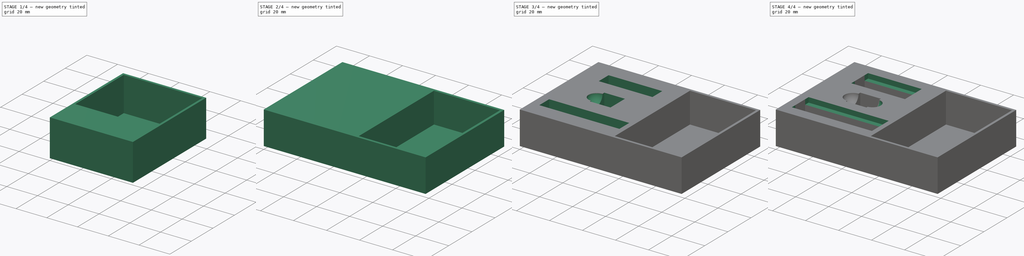
[diagram: build sequence overview — one tinted view per stage of 4, left to right]
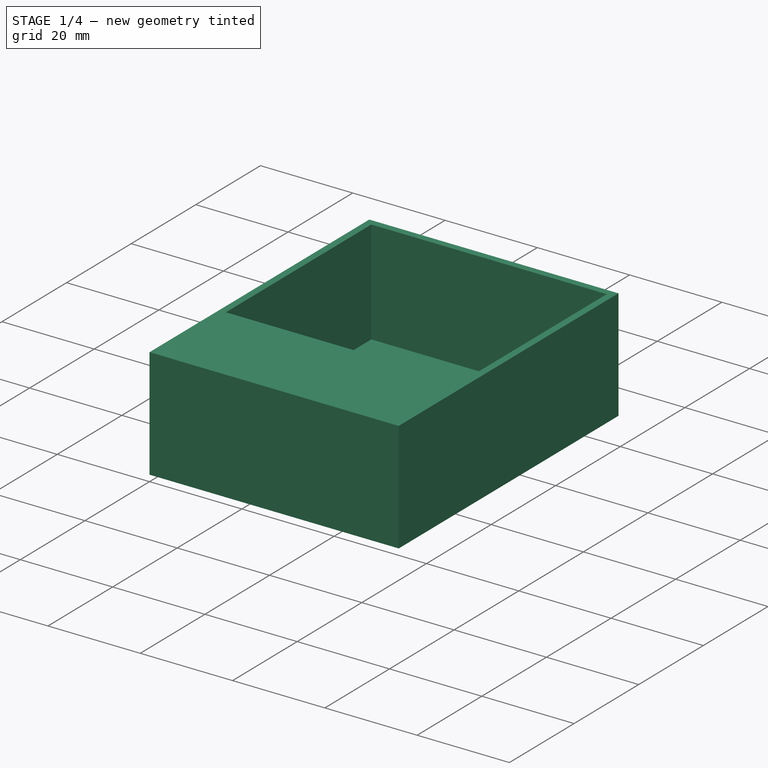
[diagram: stage 1 of 4 — iso view after this stage's code; geometry added in this stage tinted green]
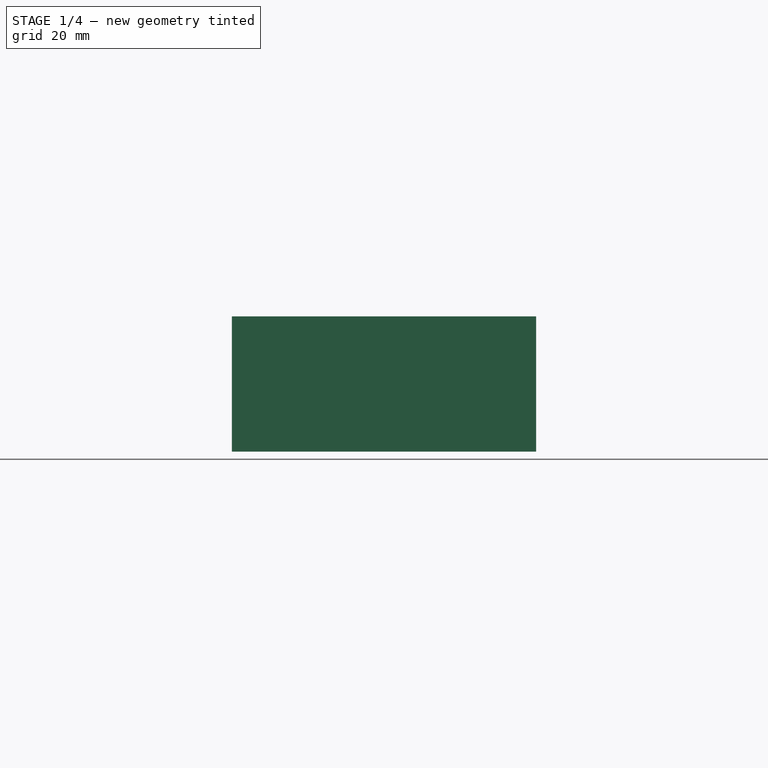
[diagram: stage 1 of 4 — front view after this stage's code; geometry added in this stage tinted green]
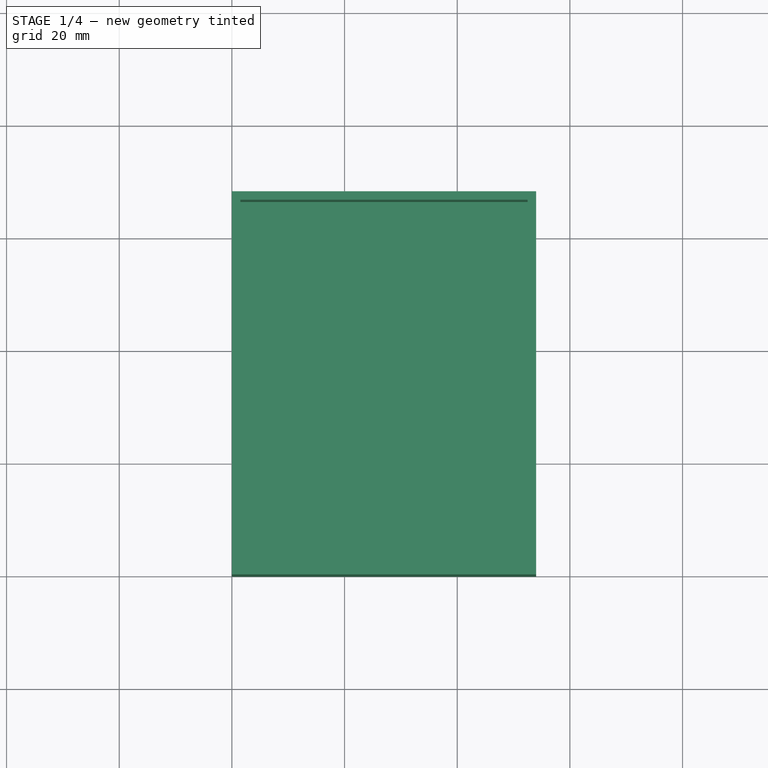
[diagram: stage 1 of 4 — top view after this stage's code; geometry added in this stage tinted green]
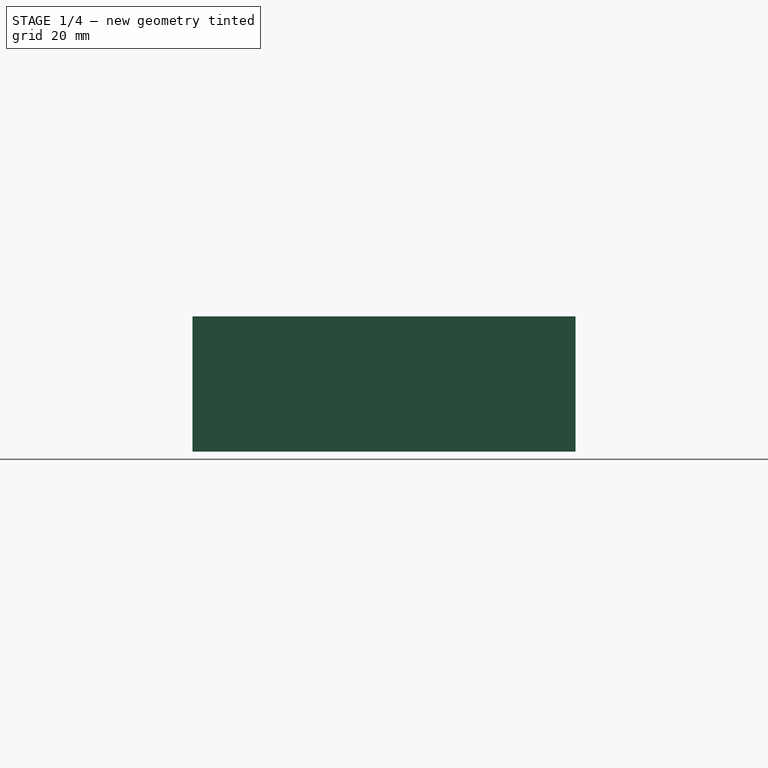
[diagram: stage 1 of 4 — right view after this stage's code; geometry added in this stage tinted green]
FCSTD DOCUMENT  (FreeCAD 0.21R33771 (Git))
Label: insert-ghbnb
License: All rights reserved
LicenseURL: https://en.wikipedia.org/wiki/All_rights_reserved
objects: Sketcher::SketchObject×10, PartDesign::Pocket×6, PartDesign::Pad×2, PartDesign::Body×2, Spreadsheet::Sheet×1, PartDesign::ShapeBinder×1, PartDesign::Groove×1, PartDesign::Point×1, PartDesign::Plane×1, PartDesign::Mirrored×1
note: 34 computed .brp shape members not serialized (recipe doc carries the construction recipe); baked Part::Feature solids carry a one-line shape summary decoded from their .brp

FEATURE [Spreadsheet::Sheet] Spreadsheet  label="constantes"
  cells = A1='largeur; B1(largeur)==70 mm; A2='longueur; B2(longueur)==100 mm; D2='Boites disque mini; A3='épaisseur mur boite; B3(epaisseur_mur_boite)==1.8 mm; A4='epaisseur cartes joueurs; B4(epaisseur_cartes_joueurs)==24 mm; D4='cote longeur boite; E4(largeur_boite_disque_mini)==longueur - largeur_carte - 2 * marge; A5='largeur cartes joueurs; B5(largeur_carte)==44 mm; D5='cote largeur boite; E5(longueur_boite_disque_mini)==longueur_carte; A6='longueur cartes joueurs; B6(longueur_carte)==68 mm; D6='hauteur; E6(hauteur_boite_disque_mini)==epaisseur_cartes_joueurs; A7='hauteur dispo creation; B7(hauteur_disponible)==44 mm; A8='marge; B8(marge)==1 mm; D8='Boite cube et marqueurs; A9='epaisseurs murs; B9(epaisseur_mur)==1.5 mm; D9='longueur; E9(longueur_boite_cubes_marqueurs)==longueur - 2 * marge; A10='epaisseur plancher; B10(epaisseur_plancher)==1.5 mm; D10='largeur; E10(largeur_boite_cubes_marqueurs)==largeur - 2 * marge; D11='hauteur; E11(hauteur_boite_cubes_marqueurs)==hauteur_disponible - hauteur_boite_disque_mini; A12='hauteur mini; B12(hauteur_mini)==17.5 mm; A13='largeur max mini; B13(largeur_max_mini)==16 mm; D13='rangement marqueurs; A14='diametre socle mini; B14(diametre_socle_mini)==11 mm; D14='cote longueur boite; E14(largeur_compartiment_marqueurs)==40 mm; A15='marge mini; B15(marge_mini)==2 mm; A16='dé; B16(cote_de)==12 mm; D16='espace cubes et de; A17='diametre disque; B17(diametre_disque)==44 mm; E17(longueur_rangement_cubes_et_de)==largeur_boite_cubes_marqueurs; A18='mini cube; B18(cote_cube)==8 mm; E18(largeur_rangement_cubes_et_de)==longueur - largeur_compartiment_marqueurs - epaisseur_mur; D20='rangement cubes; E20(distance_bords_long_centre_rangement_cubes)==(longueur_rangement_cubes_et_de / 2 - cote_de / 2) / 2; D21='tolerance cubes; E21(tolerance_cube)==0.5 mm; D22='tolerance de; E22(tolerance_de)==0.5 mm; D23='prise cube; E23(espace_prise_cube)==3 mm; D24='profondeur prise cube; E24(profondeur_prise_cube)==3 mm; D25='rayon prise de; E25(rayon_prise_de)==5 mm
FEATURE [Sketcher::SketchObject] Sketch  label="contour_boite_disques_minis"
  FullyConstrained = true
  MapMode = 5
  Support = -> [XY_Plane]
  expr: Constraints[10] = <<constantes>>.longueur_boite_disque_mini
  expr: Constraints[9] = <<constantes>>.largeur_boite_disque_mini
  sketch-geometry (4):
    g0: LineSegment StartX=0 StartY=0 StartZ=0 EndX=54 EndY=0 EndZ=0
    g1: LineSegment StartX=54 StartY=0 StartZ=0 EndX=54 EndY=68 EndZ=0
    g2: LineSegment StartX=54 StartY=68 StartZ=0 EndX=0 EndY=68 EndZ=0
    g3: LineSegment StartX=0 StartY=68 StartZ=0 EndX=0 EndY=0 EndZ=0
  constraints (11):
    c: Coincident(g0,g1)
    c: Coincident(g1,g2)
    c: Coincident(g2,g3)
    c: Coincident(g3,g0)
    c: Horizontal(g0)
    c: Horizontal(g2)
    c: Vertical(g1)
    c: Vertical(g3)
    c: Coincident(g0,g-1)
    c: DistanceX(g0,g0) = 54
    c: DistanceY(g1,g1) = 68
FEATURE [PartDesign::Pad] Pad  label="enveloppe_boite_disques_minis"
  Direction = (0,0,1)
  Length = 24
  Length2 = 10
  Profile = -> Sketch
  ReferenceAxis = -> Sketch [N_Axis]
  Type = 0
  expr: Length = <<constantes>>.hauteur_boite_disque_mini
FEATURE [Sketcher::SketchObject] Sketch001  label="coutour_trou_disques"
  ExternalGeometry = -> [Pad]
  FullyConstrained = true
  MapMode = 5
  Placement = pos=(0,0,24) rot=(0,0,1;0rad)
  Support = -> [Pad]
  expr: Constraints[10] = <<constantes>>.epaisseur_mur
  expr: Constraints[11] = <<constantes>>.diametre_disque + <<constantes>>.marge
  expr: Constraints[8] = <<constantes>>.epaisseur_mur
  expr: Constraints[9] = <<constantes>>.epaisseur_mur
  sketch-geometry (4):
    g0: LineSegment StartX=1.5 StartY=66.5 StartZ=0 EndX=52.5 EndY=66.5 EndZ=0
    g1: LineSegment StartX=52.5 StartY=66.5 StartZ=0 EndX=52.5 EndY=21.5 EndZ=0
    g2: LineSegment StartX=52.5 StartY=21.5 StartZ=0 EndX=1.5 EndY=21.5 EndZ=0
    g3: LineSegment StartX=1.5 StartY=21.5 StartZ=0 EndX=1.5 EndY=66.5 EndZ=0
  constraints (12):
    c: Coincident(g0,g1)
    c: Coincident(g1,g2)
    c: Coincident(g2,g3)
    c: Coincident(g3,g0)
    c: Horizontal(g0)
    c: Horizontal(g2)
    c: Vertical(g1)
    c: Vertical(g3)
    c: DistanceY(g0,g-4) = 1.5
    c: DistanceX(g0,g-3) = 1.5
    c: DistanceX(g-4,g2) = 1.5
    c: DistanceY(g1,g1) = 45
FEATURE [PartDesign::Pocket] Pocket  label="trou_disques"
  BaseFeature = -> Pad
  Direction = (0,0,-1)
  Length = 22.5
  Length2 = 5
  Profile = -> Sketch001
  ReferenceAxis = -> Sketch001 [N_Axis]
  Type = 0
  expr: Length = <<constantes>>.epaisseur_cartes_joueurs - <<constantes>>.epaisseur_plancher
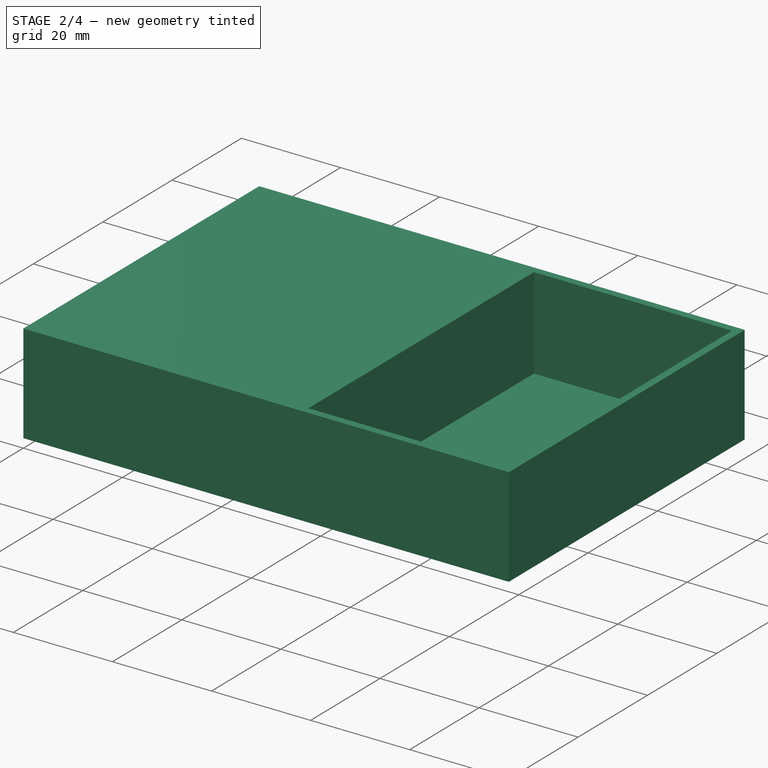
[diagram: stage 2 of 4 — iso view after this stage's code; geometry added in this stage tinted green]
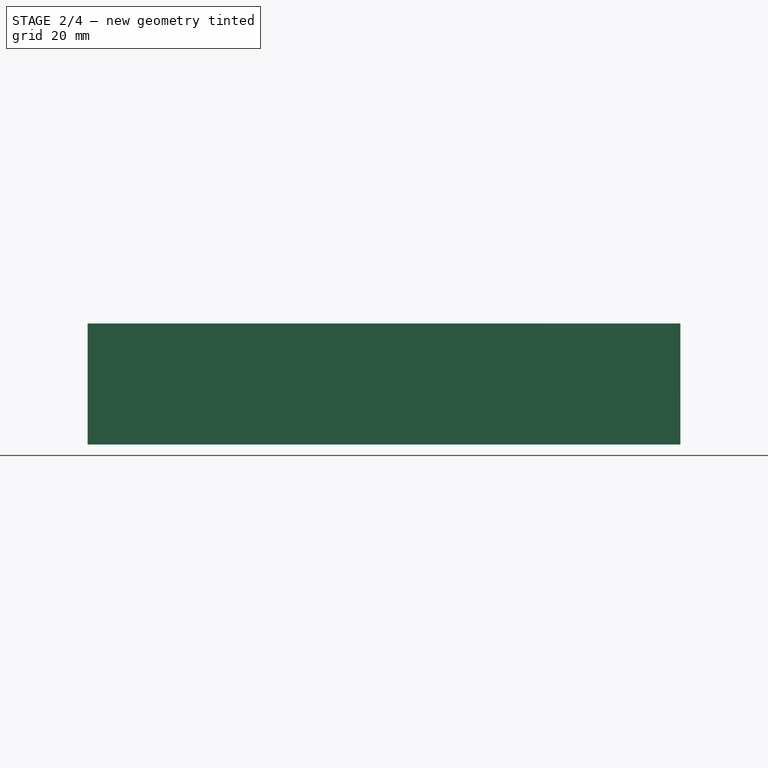
[diagram: stage 2 of 4 — front view after this stage's code; geometry added in this stage tinted green]
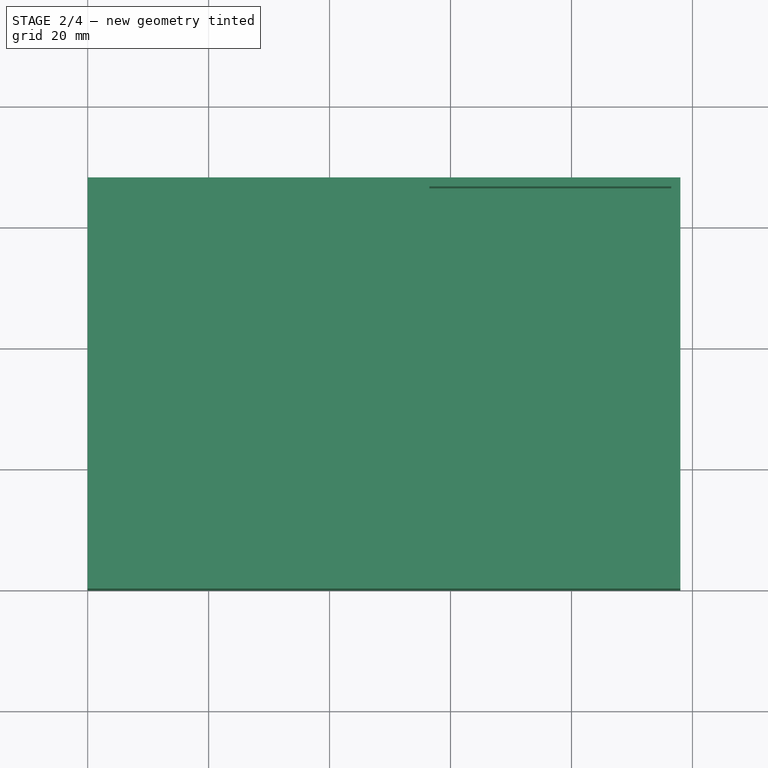
[diagram: stage 2 of 4 — top view after this stage's code; geometry added in this stage tinted green]
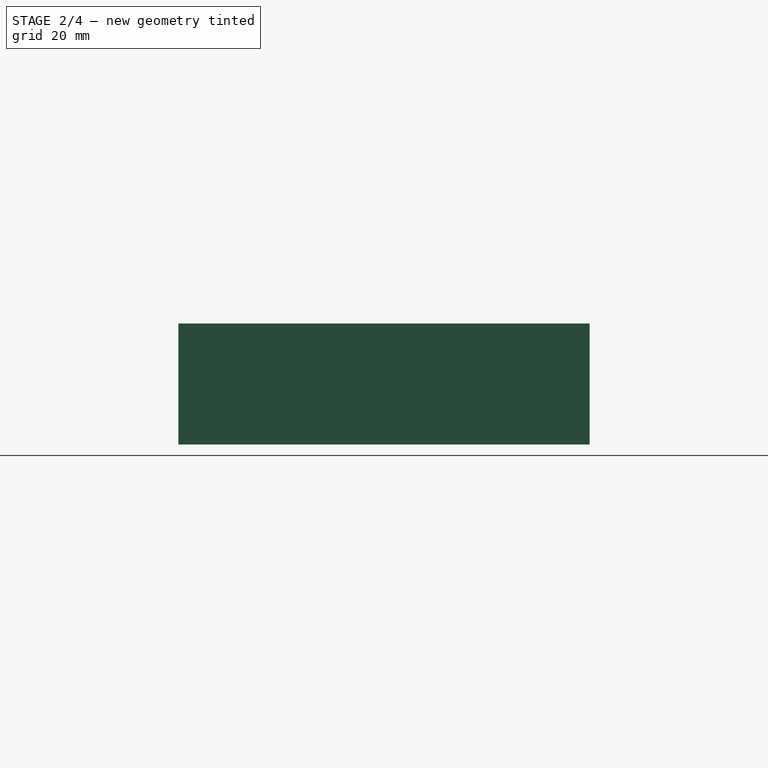
[diagram: stage 2 of 4 — right view after this stage's code; geometry added in this stage tinted green]
FEATURE [Sketcher::SketchObject] Sketch002  label="contour_trou_minis"
  ExternalGeometry = -> [Pocket]
  FullyConstrained = true
  MapMode = 5
  Placement = pos=(0,0,24) rot=(0,0,1;0rad)
  Support = -> [Pocket]
  expr: Constraints[10] = <<constantes>>.epaisseur_mur
  expr: Constraints[11] = <<constantes>>.epaisseur_mur
  expr: Constraints[8] = <<constantes>>.hauteur_mini + <<constantes>>.marge_mini
  sketch-geometry (4):
    g0: LineSegment StartX=1.5 StartY=21 StartZ=0 EndX=52.5 EndY=21 EndZ=0
    g1: LineSegment StartX=52.5 StartY=21 StartZ=0 EndX=52.5 EndY=1.5 EndZ=0
    g2: LineSegment StartX=52.5 StartY=1.5 StartZ=0 EndX=1.5 EndY=1.5 EndZ=0
    g3: LineSegment StartX=1.5 StartY=1.5 StartZ=0 EndX=1.5 EndY=21 EndZ=0
  constraints (13):
    c: Coincident(g0,g1)
    c: Coincident(g1,g2)
    c: Coincident(g2,g3)
    c: Coincident(g3,g0)
    c: Horizontal(g0)
    c: Horizontal(g2)
    c: Vertical(g1)
    c: Vertical(g3)
    c: DistanceY(g1,g1) = 19.5
    c: Equal(g-3,g0)
    c: DistanceX(g-1,g2) = 1.5
    c: DistanceY(g-1,g2) = 1.5
    c: DistanceY(g0,g-3) = 0.5
FEATURE [PartDesign::Pocket] Pocket001  label="trou_minis"
  BaseFeature = -> Pocket
  Direction = (0,0,-1)
  Length = 18.5
  Length2 = 5
  Profile = -> Sketch002
  ReferenceAxis = -> Sketch002 [N_Axis]
  Type = 0
  expr: Length = <<constantes>>.hauteur_mini + <<constantes>>.marge
FEATURE [PartDesign::Body] Body  label="boite_disques_minis"
  Group = -> [Sketch,Pad,Sketch001,Pocket,Sketch002,Pocket001]
  Origin = -> Origin
  Tip = -> Pocket001
FEATURE [PartDesign::ShapeBinder] ShapeBinder
  Support = -> [Pocket001]
  TraceSupport = false
FEATURE [Sketcher::SketchObject] Sketch003  label="contour_boite_cubes_marqueurs"
  FullyConstrained = true
  MapMode = 5
  Placement = pos=(0,0,24) rot=(0,0,1;0rad)
  Support = -> [ShapeBinder]
  expr: Constraints[10] = <<constantes>>.longueur_boite_cubes_marqueurs
  expr: Constraints[9] = <<constantes>>.largeur_boite_cubes_marqueurs
  sketch-geometry (4):
    g0: LineSegment StartX=0 StartY=0 StartZ=0 EndX=98 EndY=0 EndZ=0
    g1: LineSegment StartX=98 StartY=0 StartZ=0 EndX=98 EndY=68 EndZ=0
    g2: LineSegment StartX=98 StartY=68 StartZ=0 EndX=0 EndY=68 EndZ=0
    g3: LineSegment StartX=0 StartY=68 StartZ=0 EndX=0 EndY=0 EndZ=0
  constraints (11):
    c: Coincident(g0,g1)
    c: Coincident(g1,g2)
    c: Coincident(g2,g3)
    c: Coincident(g3,g0)
    c: Horizontal(g0)
    c: Horizontal(g2)
    c: Vertical(g1)
    c: Vertical(g3)
    c: Coincident(g0,g-1)
    c: DistanceY(g1,g1) = 68
    c: DistanceX(g2,g2) = 98
FEATURE [PartDesign::Pad] Pad001  label="enveloppe_boite_cubes_marqueurs"
  Direction = (0,0,1)
  Length = 20
  Length2 = 10
  Profile = -> Sketch003
  ReferenceAxis = -> Sketch003 [N_Axis]
  Type = 0
  expr: Length = <<constantes>>.hauteur_boite_cubes_marqueurs
FEATURE [Sketcher::SketchObject] Sketch004  label="contour_rangement_marqueurs"
  ExternalGeometry = -> [Pad001]
  FullyConstrained = true
  MapMode = 5
  Placement = pos=(0,0,44) rot=(0,0,1;0rad)
  Support = -> [Pad001]
  expr: Constraints[10] = <<constantes>>.epaisseur_mur
  expr: Constraints[11] = <<constantes>>.largeur_compartiment_marqueurs
  expr: Constraints[8] = <<constantes>>.epaisseur_mur
  expr: Constraints[9] = <<constantes>>.epaisseur_mur
  sketch-geometry (4):
    g0: LineSegment StartX=56.5 StartY=66.5 StartZ=0 EndX=96.5 EndY=66.5 EndZ=0
    g1: LineSegment StartX=96.5 StartY=66.5 StartZ=0 EndX=96.5 EndY=1.5 EndZ=0
    g2: LineSegment StartX=96.5 StartY=1.5 StartZ=0 EndX=56.5 EndY=1.5 EndZ=0
    g3: LineSegment StartX=56.5 StartY=1.5 StartZ=0 EndX=56.5 EndY=66.5 EndZ=0
  constraints (12):
    c: Coincident(g0,g1)
    c: Coincident(g1,g2)
    c: Coincident(g2,g3)
    c: Coincident(g3,g0)
    c: Horizontal(g0)
    c: Horizontal(g2)
    c: Vertical(g1)
    c: Vertical(g3)
    c: DistanceY(g-4,g1) = 1.5
    c: DistanceY(g0,g-3) = 1.5
    c: DistanceX(g0,g-3) = 1.5
    c: DistanceX(g2,g2) = 40
FEATURE [PartDesign::Pocket] Pocket002  label="rangement_marqueurs"
  BaseFeature = -> Pad001
  Direction = (0,0,-1)
  Length = 18.5
  Length2 = 5
  Profile = -> Sketch004
  ReferenceAxis = -> Sketch004 [N_Axis]
  Type = 0
  expr: Length = <<constantes>>.hauteur_boite_cubes_marqueurs - <<constantes>>.epaisseur_plancher
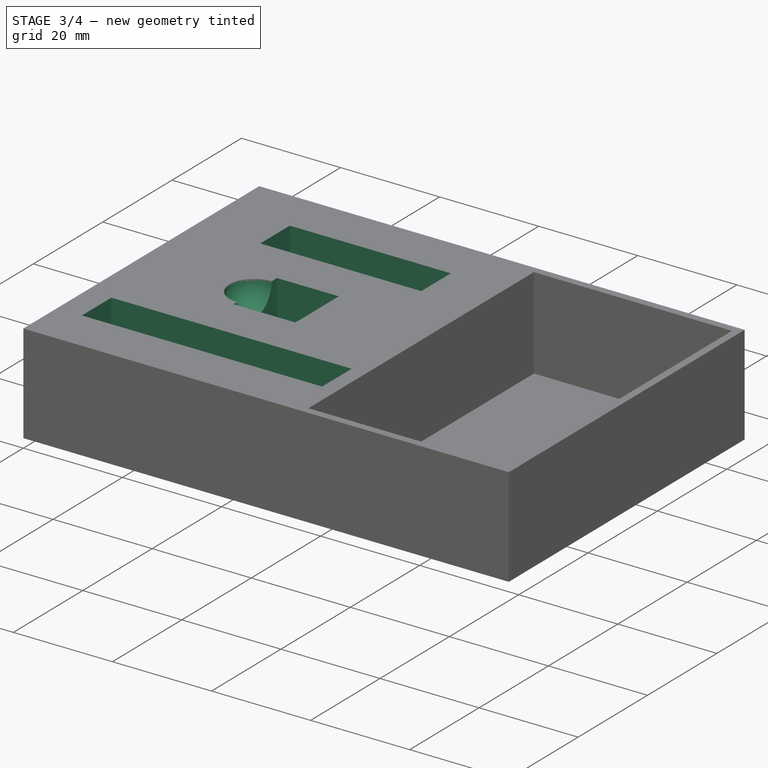
[diagram: stage 3 of 4 — iso view after this stage's code; geometry added in this stage tinted green]
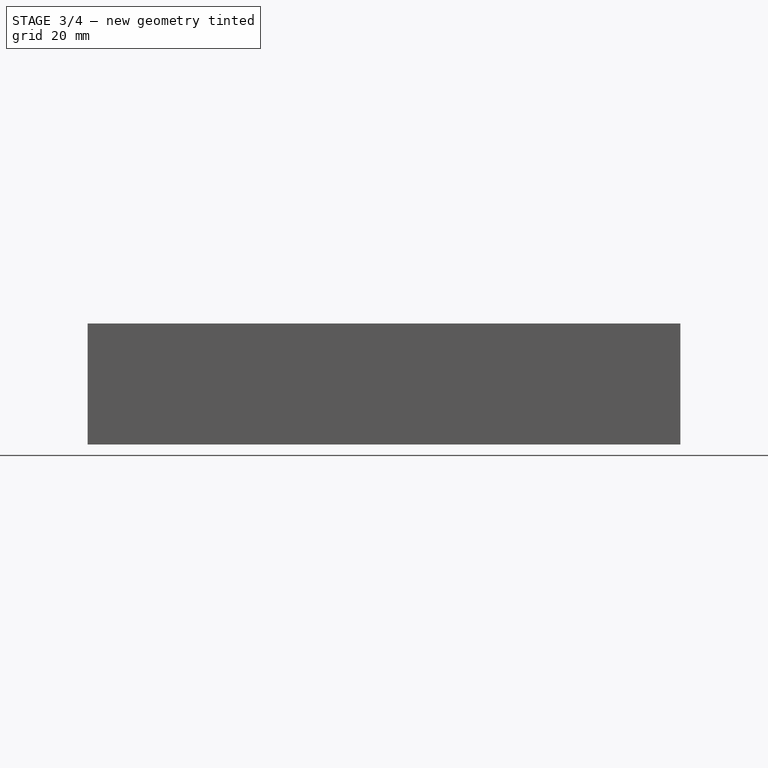
[diagram: stage 3 of 4 — front view after this stage's code; geometry added in this stage tinted green]
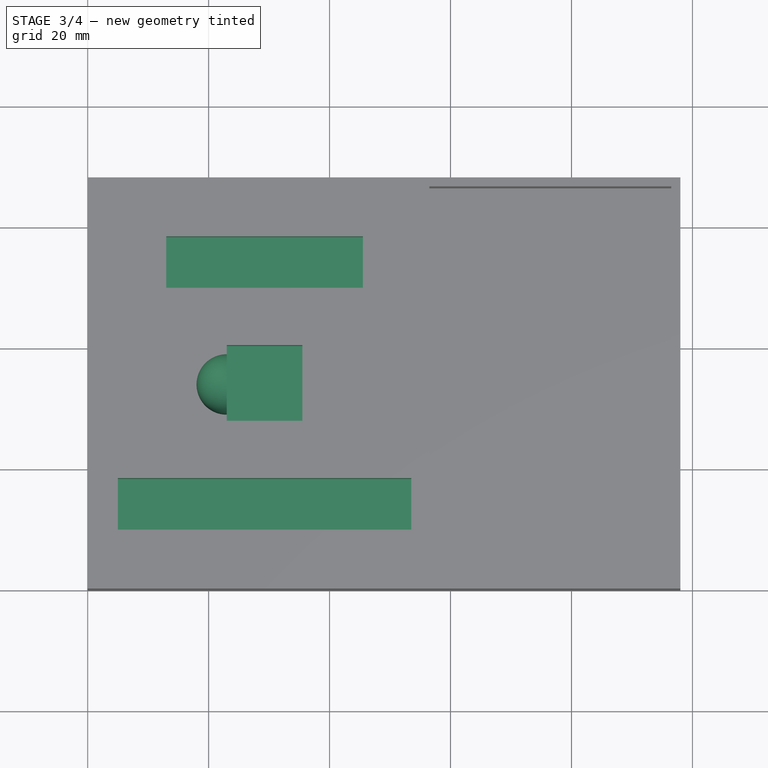
[diagram: stage 3 of 4 — top view after this stage's code; geometry added in this stage tinted green]
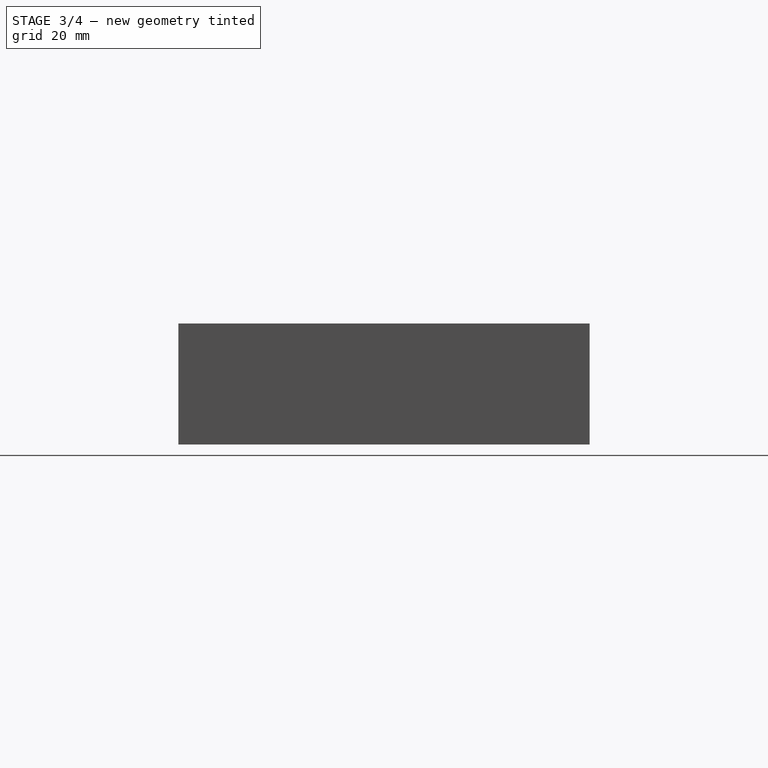
[diagram: stage 3 of 4 — right view after this stage's code; geometry added in this stage tinted green]
FEATURE [Sketcher::SketchObject] Sketch005  label="contour_rangement_de"
  ExternalGeometry = -> [Pocket002]
  FullyConstrained = true
  MapMode = 5
  Placement = pos=(0,0,44) rot=(0,0,1;0rad)
  Support = -> [Pocket002]
  expr: Constraints[0] = <<constantes>>.longueur_rangement_cubes_et_de / 2
  expr: Constraints[13] = <<constantes>>.cote_de + <<constantes>>.tolerance_de
  expr: Constraints[1] = <<constantes>>.largeur_rangement_cubes_et_de / 2
  sketch-geometry (6):
    g0: GeomPoint X=29.25 Y=34 Z=0
    g1: LineSegment StartX=35.5 StartY=27.75 StartZ=0 EndX=35.5 EndY=40.25 EndZ=0
    g2: LineSegment StartX=35.5 StartY=40.25 StartZ=0 EndX=23 EndY=40.25 EndZ=0
    g3: LineSegment StartX=23 StartY=40.25 StartZ=0 EndX=23 EndY=27.75 EndZ=0
    g4: LineSegment StartX=23 StartY=27.75 StartZ=0 EndX=35.5 EndY=27.75 EndZ=0
    g5: GeomPoint X=29.25 Y=34 Z=0
  constraints (14):
    c: DistanceY(g0,g-3) = 34
    c: DistanceX(g-3,g0) = 29.25
    c: Coincident(g1,g2)
    c: Coincident(g2,g3)
    c: Coincident(g3,g4)
    c: Coincident(g4,g1)
    c: Horizontal(g2)
    c: Horizontal(g4)
    c: Vertical(g1)
    c: Vertical(g3)
    c: Symmetric(g2,g1,g5)
    c: Coincident(g5,g0)
    c: Equal(g2,g1)
    c: DistanceX(g2,g2) = 12.5
FEATURE [PartDesign::Pocket] Pocket003  label="rangement_de"
  BaseFeature = -> Pocket002
  Direction = (0,0,-1)
  Length = 8
  Length2 = 5
  Profile = -> Sketch005
  ReferenceAxis = -> Sketch005 [N_Axis]
  Type = 0
  expr: Length = <<constantes>>.cote_cube
FEATURE [Sketcher::SketchObject] Sketch006  label="contour_rangement_cubes"
  ExternalGeometry = -> [Pocket003]
  FullyConstrained = true
  MapMode = 5
  Placement = pos=(0,0,44) rot=(0,0,1;0rad)
  Support = -> [Pocket003]
  expr: Constraints[0] = <<constantes>>.largeur_rangement_cubes_et_de / 2
  expr: Constraints[1] = <<constantes>>.distance_bords_long_centre_rangement_cubes
  expr: Constraints[24] = <<constantes>>.cote_cube + <<constantes>>.tolerance_de
  expr: Constraints[25] = <<constantes>>.cote_cube + <<constantes>>.tolerance_cube
  expr: Constraints[26] = 4 * <<constantes>>.cote_cube + <<constantes>>.tolerance_cube
  expr: Constraints[27] = 6 * <<constantes>>.cote_cube + <<constantes>>.tolerance_cube
  expr: Constraints[2] = <<constantes>>.largeur_rangement_cubes_et_de / 2
  expr: Constraints[3] = <<constantes>>.distance_bords_long_centre_rangement_cubes
  sketch-geometry (12):
    g0: GeomPoint X=29.25 Y=14 Z=0
    g1: GeomPoint X=29.25 Y=54 Z=0
    g2: LineSegment StartX=13 StartY=49.75 StartZ=0 EndX=13 EndY=58.25 EndZ=0
    g3: LineSegment StartX=13 StartY=58.25 StartZ=0 EndX=45.5 EndY=58.25 EndZ=0
    g4: LineSegment StartX=45.5 StartY=58.25 StartZ=0 EndX=45.5 EndY=49.75 EndZ=0
    g5: LineSegment StartX=45.5 StartY=49.75 StartZ=0 EndX=13 EndY=49.75 EndZ=0
    g6: GeomPoint X=29.25 Y=54 Z=0
    g7: LineSegment StartX=5 StartY=9.75 StartZ=0 EndX=5 EndY=18.25 EndZ=0
    g8: LineSegment StartX=5 StartY=18.25 StartZ=0 EndX=53.5 EndY=18.25 EndZ=0
    g9: LineSegment StartX=53.5 StartY=18.25 StartZ=0 EndX=53.5 EndY=9.75 EndZ=0
    g10: LineSegment StartX=53.5 StartY=9.75 StartZ=0 EndX=5 EndY=9.75 EndZ=0
    g11: GeomPoint X=29.25 Y=14 Z=0
  constraints (28):
    c: DistanceX(g-3,g0) = 29.25
    c: DistanceY(g-3,g0) = 14
    c: DistanceX(g-4,g1) = 29.25
    c: DistanceY(g1,g-4) = 14
    c: Coincident(g2,g3)
    c: Coincident(g3,g4)
    c: Coincident(g4,g5)
    c: Coincident(g5,g2)
    c: Horizontal(g3)
    c: Horizontal(g5)
    c: Vertical(g2)
    c: Vertical(g4)
    c: Symmetric(g3,g2,g6)
    c: Coincident(g6,g1)
    c: Coincident(g7,g8)
    c: Coincident(g8,g9)
    c: Coincident(g9,g10)
    c: Coincident(g10,g7)
    c: Horizontal(g8)
    c: Horizontal(g10)
    c: Vertical(g7)
    c: Vertical(g9)
    c: Symmetric(g8,g7,g11)
    c: Coincident(g11,g0)
    c: DistanceY(g7,g7) = 8.5
    c: DistanceY(g2,g2) = 8.5
    c: DistanceX(g3,g3) = 32.5
    c: DistanceX(g8,g8) = 48.5
FEATURE [PartDesign::Pocket] Pocket004  label="rangement_cubes"
  BaseFeature = -> Pocket003
  Direction = (0,0,-1)
  Length = 8
  Length2 = 5
  Profile = -> Sketch006
  ReferenceAxis = -> Sketch006 [N_Axis]
  Type = 0
  expr: Length = <<constantes>>.cote_cube
FEATURE [Sketcher::SketchObject] Sketch007  label="contour_prise_de_gauche"
  ExternalGeometry = -> [Pocket004]
  FullyConstrained = true
  MapMode = 5
  Placement = pos=(0,0,44) rot=(0,0,1;0rad)
  Support = -> [Pocket004]
  expr: Constraints[2] = <<constantes>>.cote_de / 2
  expr: Constraints[3] = <<constantes>>.rayon_prise_de
  sketch-geometry (2):
    g0: ArcOfCircle CenterX=23 CenterY=33.75 CenterZ=0 NormalX=0 NormalY=0 NormalZ=1 AngleXU=0 Radius=5 StartAngle=1.5708 EndAngle=4.71239
    g1: LineSegment StartX=23 StartY=38.75 StartZ=0 EndX=23 EndY=28.75 EndZ=0
  constraints (7):
    c: PointOnObject(g0,g-3)
    c: PointOnObject(g0,g-3)
    c: DistanceY(g-3,g0) = 6
    c: DistanceY(g0,g0) = 5
    c: PointOnObject(g0,g-3)
    c: Coincident(g1,g0)
    c: Coincident(g1,g0)
FEATURE [PartDesign::Groove] Groove  label="prise_de_gauche"
  Angle = 360
  Axis = (0,-1,0)
  Base = (23,40.25,44)
  BaseFeature = -> Pocket004
  Profile = -> Sketch007
  ReferenceAxis = -> Pocket004 [Edge20]
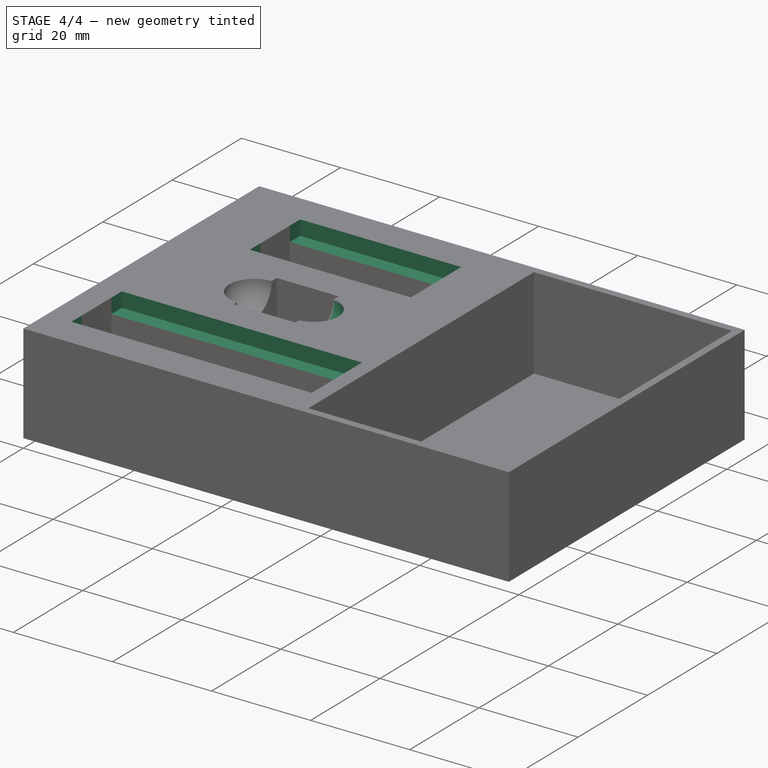
[diagram: stage 4 of 4 — iso view after this stage's code; geometry added in this stage tinted green]
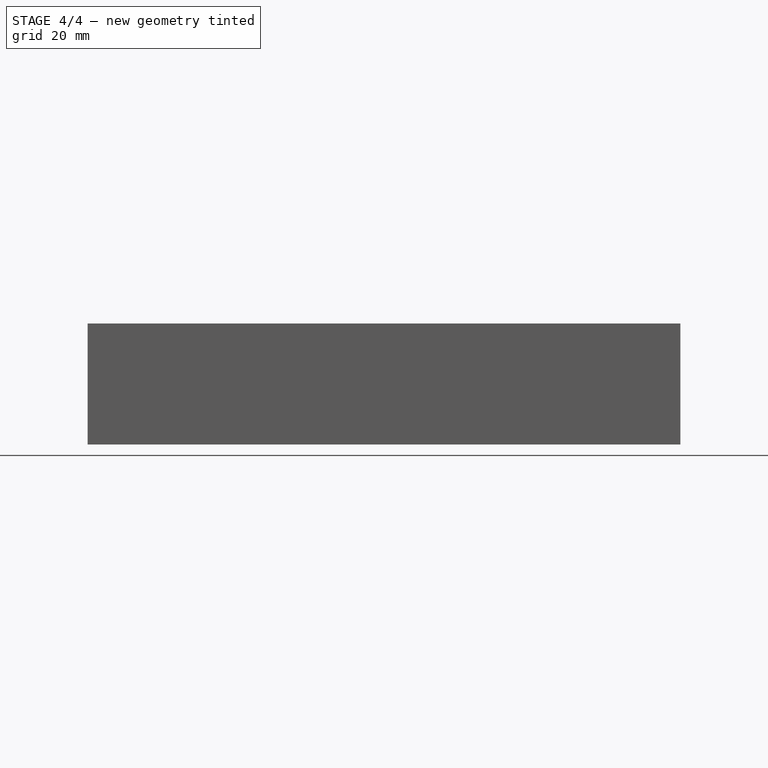
[diagram: stage 4 of 4 — front view after this stage's code; geometry added in this stage tinted green]
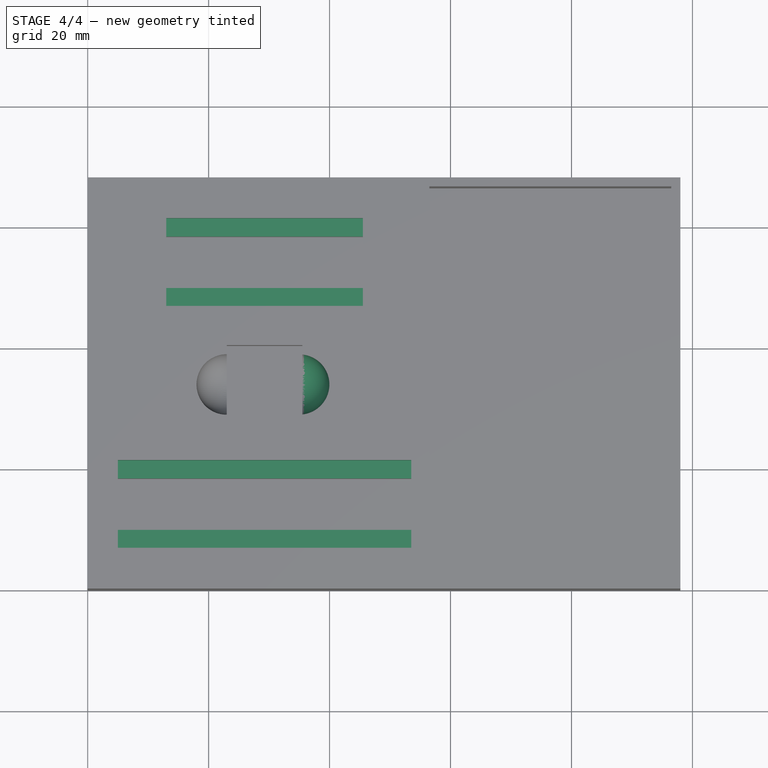
[diagram: stage 4 of 4 — top view after this stage's code; geometry added in this stage tinted green]
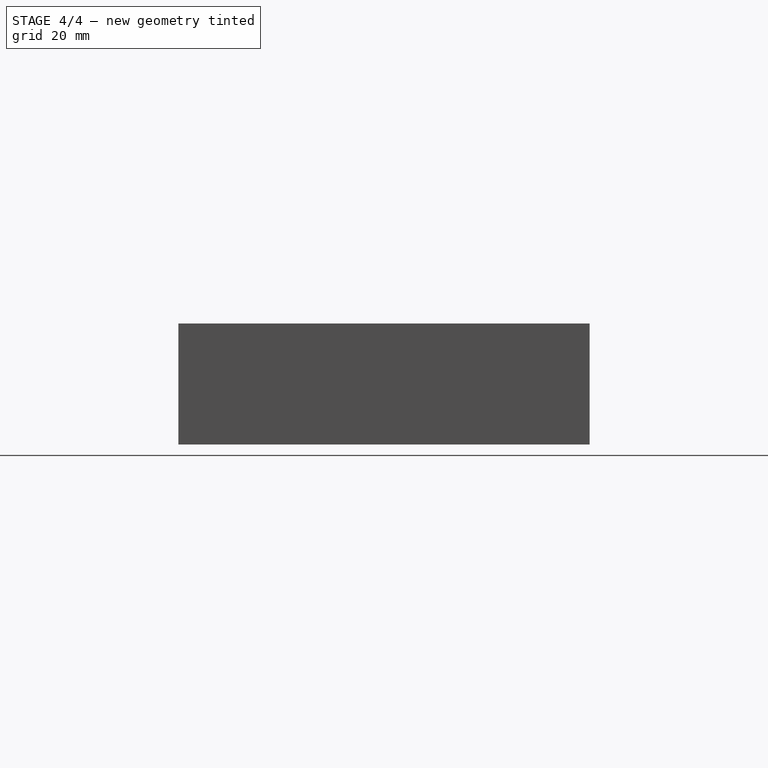
[diagram: stage 4 of 4 — right view after this stage's code; geometry added in this stage tinted green]
FEATURE [Sketcher::SketchObject] Sketch008
  ExternalGeometry = -> [Groove]
  FullyConstrained = false
  MapMode = 5
  Placement = pos=(0,0,44) rot=(0,0,1;0rad)
  Support = -> [Groove]
  expr: Constraints[1] = <<constantes>>.cote_de / 2
  sketch-geometry (1):
    g0: LineSegment StartX=29 StartY=41.6688 StartZ=0 EndX=29 EndY=24.8464 EndZ=0
  constraints (2):
    c: Vertical(g0)
    c: DistanceX(g-3,g0) = 6
FEATURE [PartDesign::Point] DatumPoint
  AttacherType = Attacher::AttachEnginePoint
  MapMode = 37
  Placement = pos=(29.25,34,36) rot=(0,0,1;0rad)
FEATURE [PartDesign::Plane] DatumPlane
  Length = 70.9493
  MapMode = 13
  Placement = pos=(29.0833,33.5051,41.3333) rot=(0.571244,0.571244,0.589374;2.07645rad)
  ResizeMode = 0
  Support = -> [DatumPoint,Sketch008]
  Width = 78.6177
FEATURE [PartDesign::Mirrored] Mirrored  label="prise_de"
  BaseFeature = -> Groove
  MirrorPlane = -> DatumPlane
  Originals = -> [Groove]
FEATURE [Sketcher::SketchObject] Sketch009  label="contour_espace_prise_cube"
  ExternalGeometry = -> [Mirrored]
  FullyConstrained = true
  MapMode = 5
  Placement = pos=(0,0,44) rot=(0,0,1;0rad)
  Support = -> [Mirrored]
  expr: Constraints[18] = <<constantes>>.espace_prise_cube
  expr: Constraints[19] = <<constantes>>.espace_prise_cube
  expr: Constraints[22] = <<constantes>>.espace_prise_cube
  expr: Constraints[23] = <<constantes>>.espace_prise_cube
  sketch-geometry (8):
    g0: LineSegment StartX=13 StartY=61.25 StartZ=0 EndX=45.5 EndY=61.25 EndZ=0
    g1: LineSegment StartX=45.5 StartY=61.25 StartZ=0 EndX=45.5 EndY=46.75 EndZ=0
    g2: LineSegment StartX=45.5 StartY=46.75 StartZ=0 EndX=13 EndY=46.75 EndZ=0
    g3: LineSegment StartX=13 StartY=46.75 StartZ=0 EndX=13 EndY=61.25 EndZ=0
    g4: LineSegment StartX=5 StartY=21.25 StartZ=0 EndX=53.5 EndY=21.25 EndZ=0
    g5: LineSegment StartX=53.5 StartY=21.25 StartZ=0 EndX=53.5 EndY=6.75 EndZ=0
    g6: LineSegment StartX=53.5 StartY=6.75 StartZ=0 EndX=5 EndY=6.75 EndZ=0
    g7: LineSegment StartX=5 StartY=6.75 StartZ=0 EndX=5 EndY=21.25 EndZ=0
  constraints (24):
    c: Coincident(g0,g1)
    c: Coincident(g1,g2)
    c: Coincident(g2,g3)
    c: Coincident(g3,g0)
    c: Horizontal(g0)
    c: Horizontal(g2)
    c: Vertical(g1)
    c: Vertical(g3)
    c: Coincident(g4,g5)
    c: Coincident(g5,g6)
    c: Coincident(g6,g7)
    c: Coincident(g7,g4)
    c: Horizontal(g4)
    c: Horizontal(g6)
    c: Vertical(g5)
    c: Vertical(g7)
    c: Equal(g4,g-3)
    c: DistanceX(g4,g-3) = 0
    c: DistanceY(g-3,g4) = 3
    c: DistanceY(g6,g-4) = 3
    c: Equal(g0,g-6)
    c: DistanceX(g-5,g2) = 0
    c: DistanceY(g-6,g0) = 3
    c: DistanceY(g2,g-5) = 3
FEATURE [PartDesign::Pocket] Pocket005
  BaseFeature = -> Mirrored
  Direction = (0,0,-1)
  Length = 3
  Length2 = 5
  Profile = -> Sketch009
  ReferenceAxis = -> Sketch009 [N_Axis]
  Type = 0
  expr: Length = <<constantes>>.profondeur_prise_cube
FEATURE [PartDesign::Body] Body001  label="boites_cubes_marqueurs"
  Group = -> [ShapeBinder,Sketch003,Pad001,Sketch004,Pocket002,Sketch005,Pocket003,Sketch006,Pocket004,Sketch007,Groove,Sketch008,DatumPoint,DatumPlane,Mirrored,Sketch009,Pocket005]
  Origin = -> Origin001
  Tip = -> Pocket005
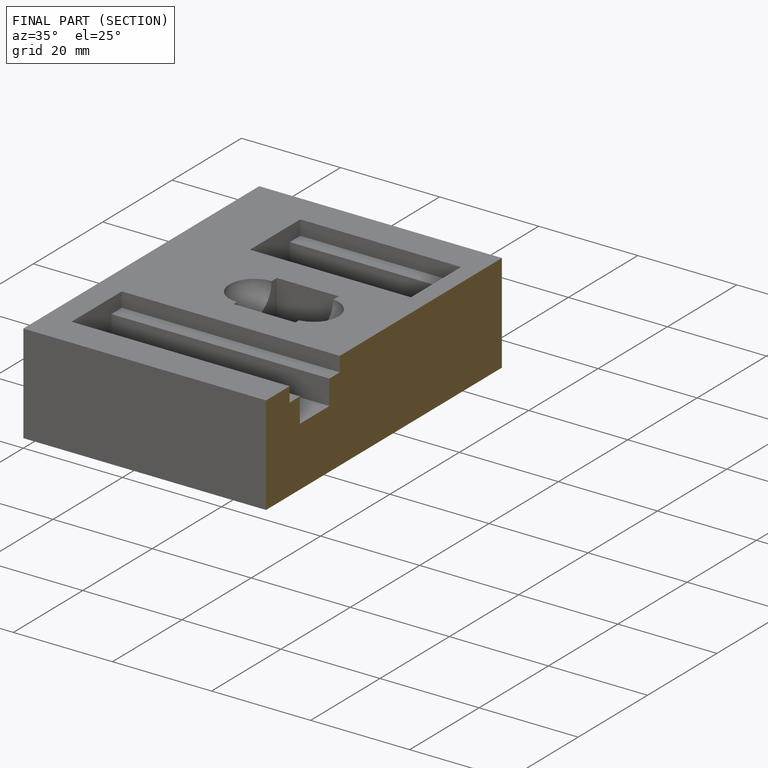
[diagram: finished part — half-section view (interior)]
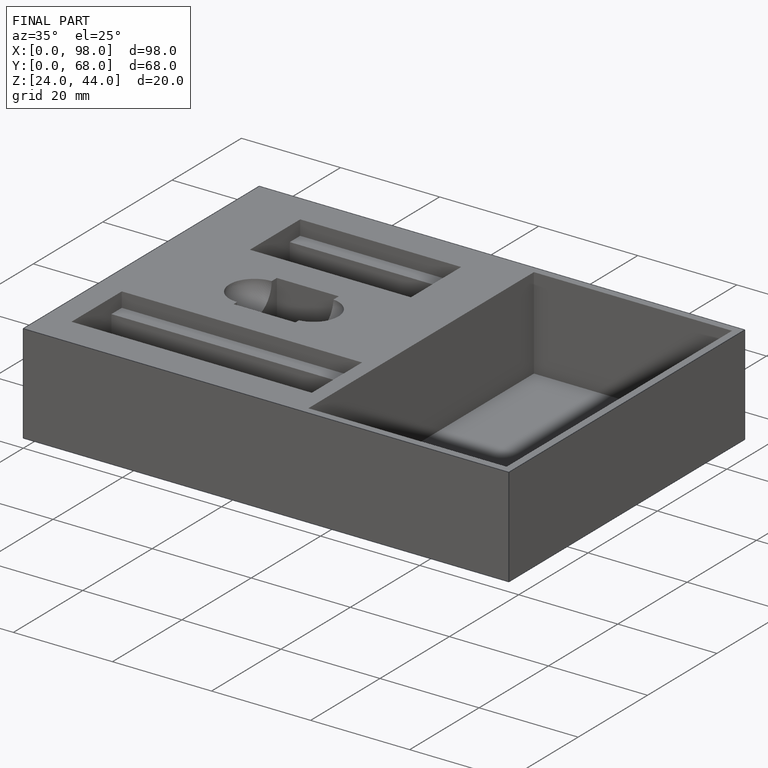
[diagram: finished part — iso view with bounding-box wireframe]
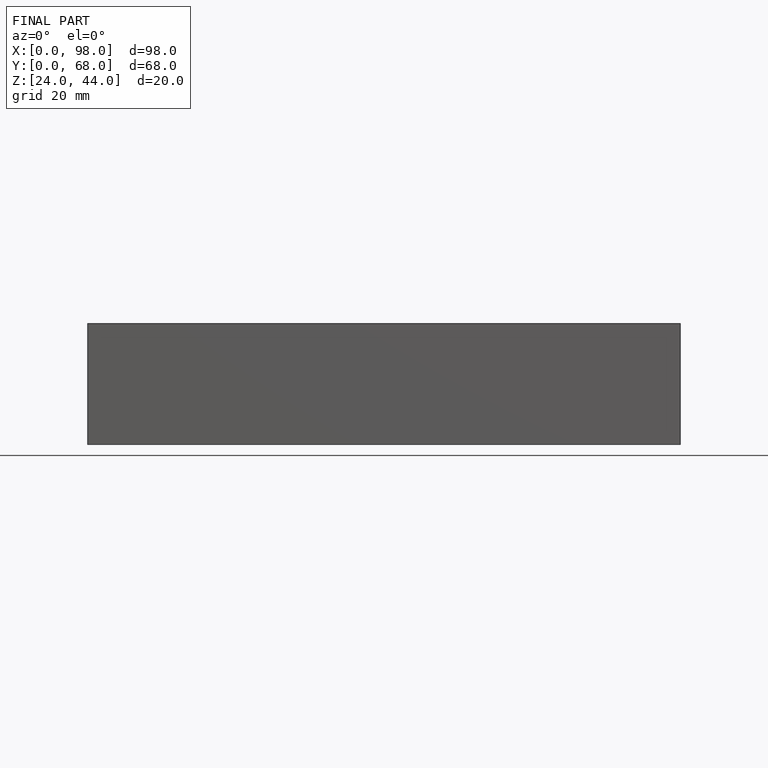
[diagram: finished part — front view with bounding-box wireframe]
